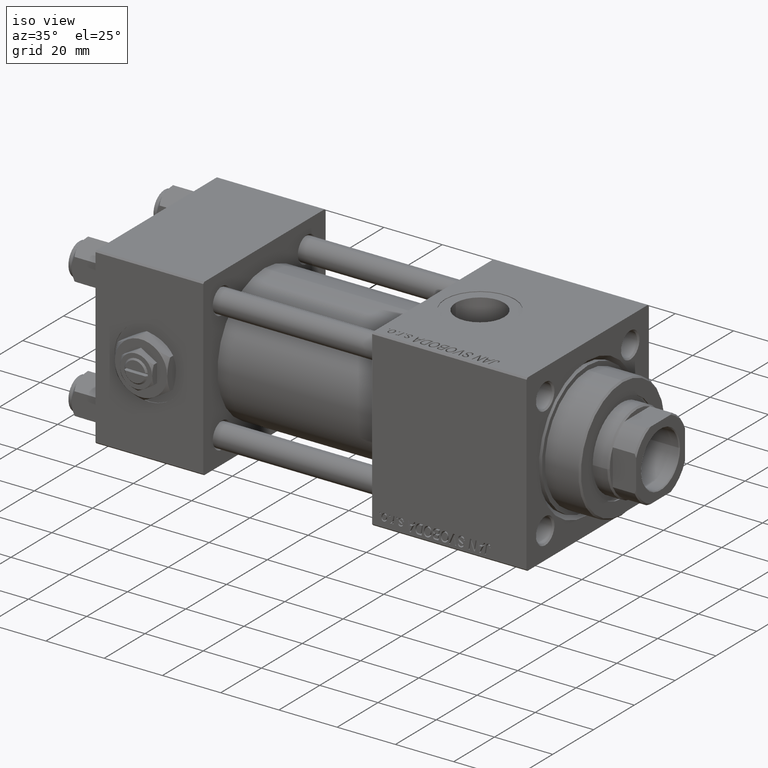
[diagram: clean part render]
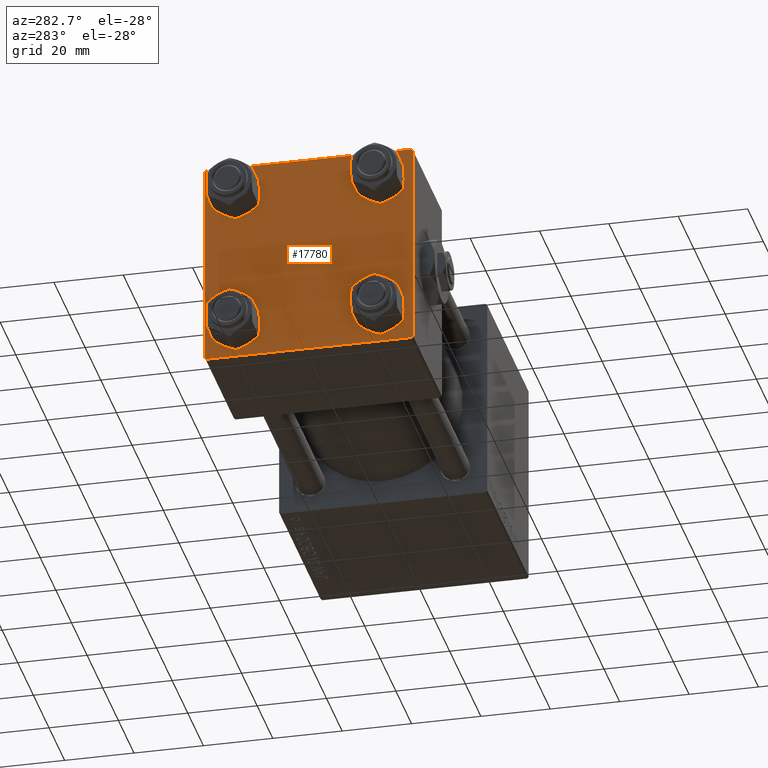
[diagram: tour spotlight — one face highlighted and labeled with its STEP entity id]
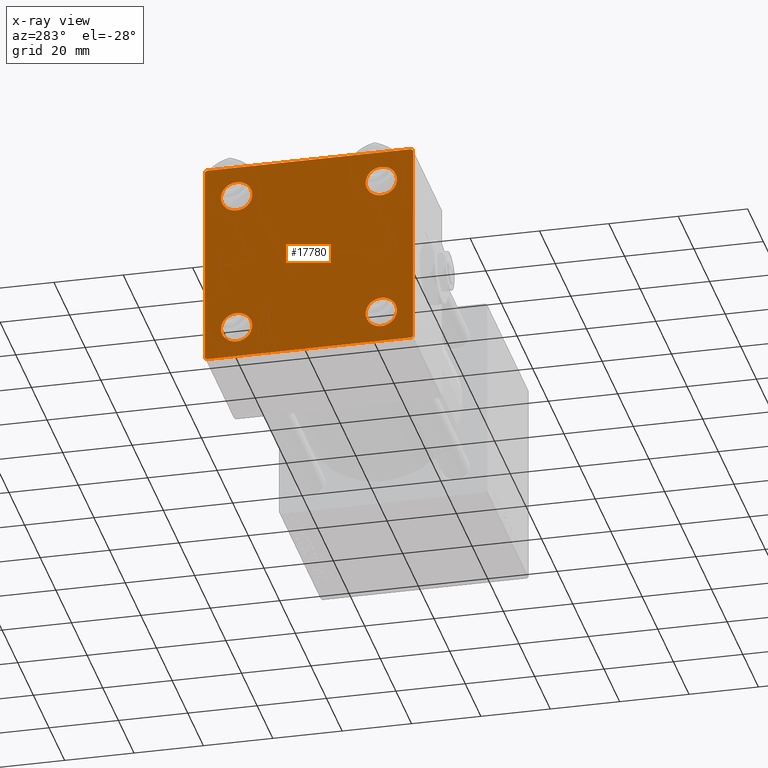
[diagram: x-ray of the same camera — body ghosted, this tour face saturated]
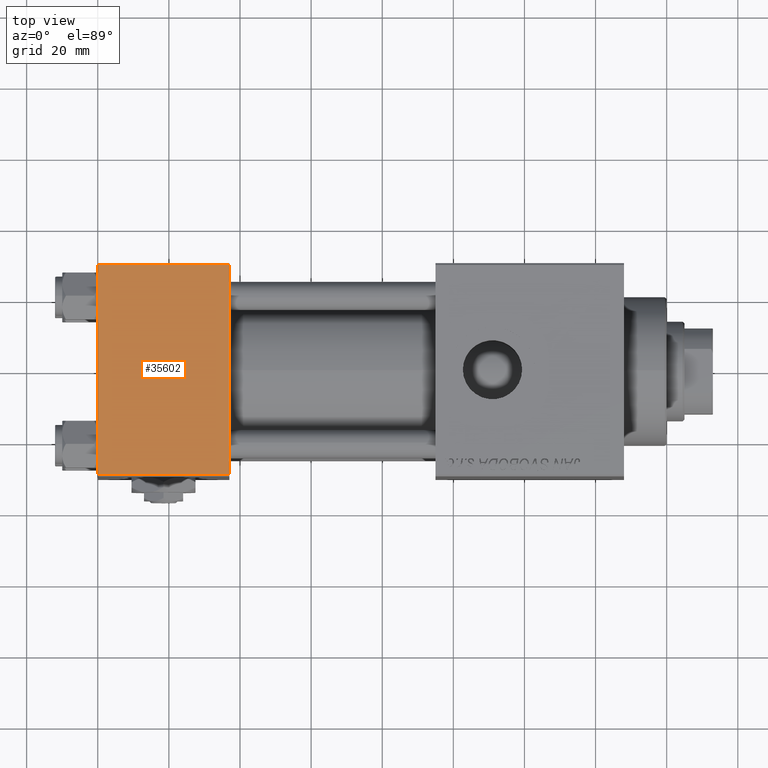
[diagram: tour spotlight — one face highlighted and labeled with its STEP entity id]
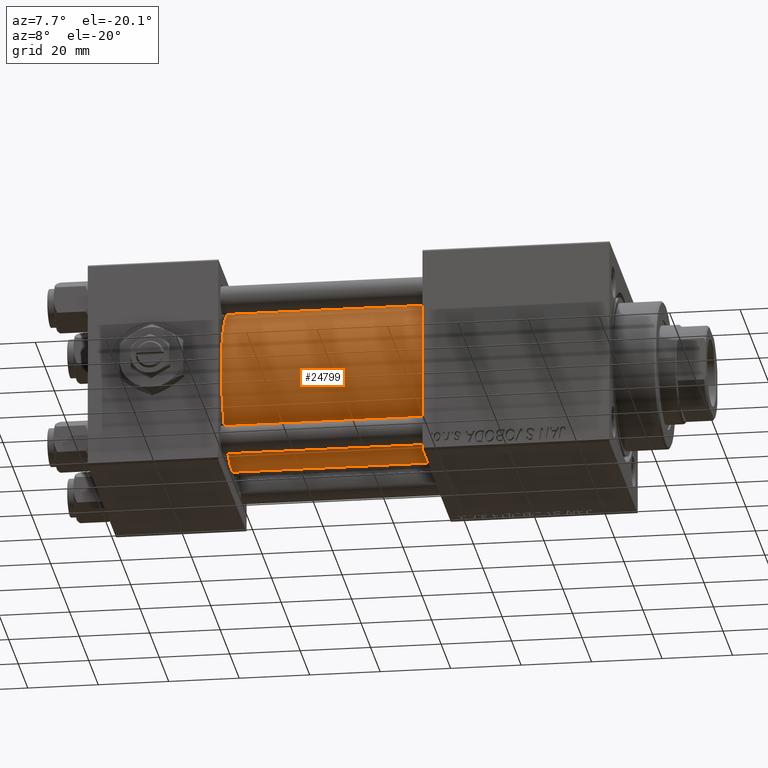
[diagram: tour spotlight — one face highlighted and labeled with its STEP entity id]
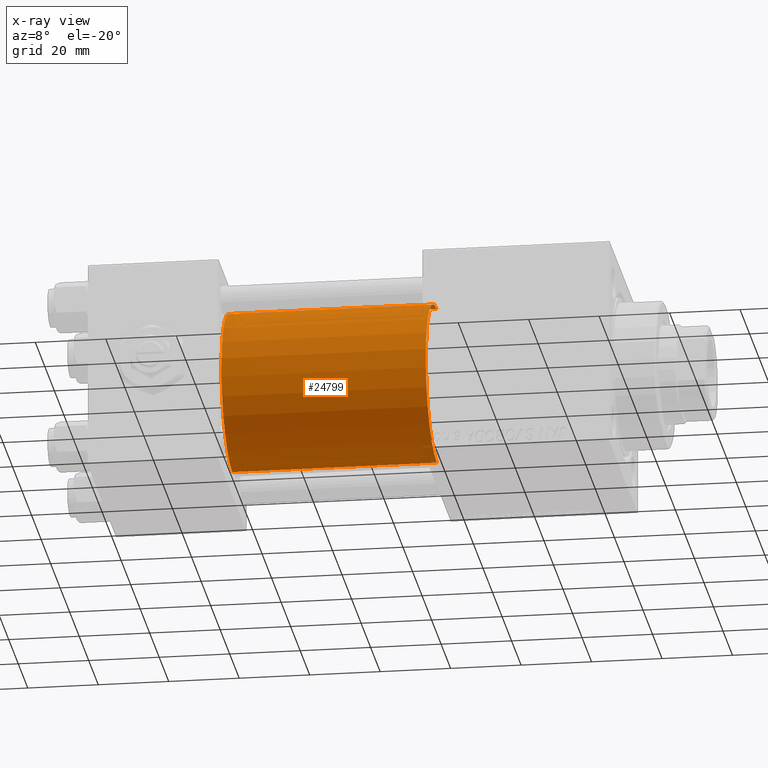
[diagram: x-ray of the same camera — body ghosted, this tour face saturated]
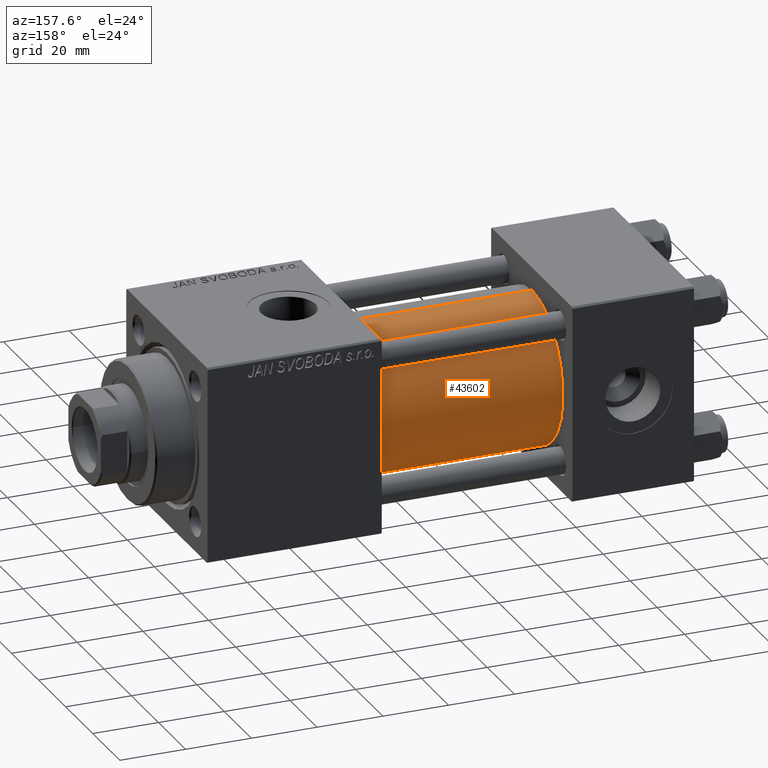
[diagram: tour spotlight — one face highlighted and labeled with its STEP entity id]
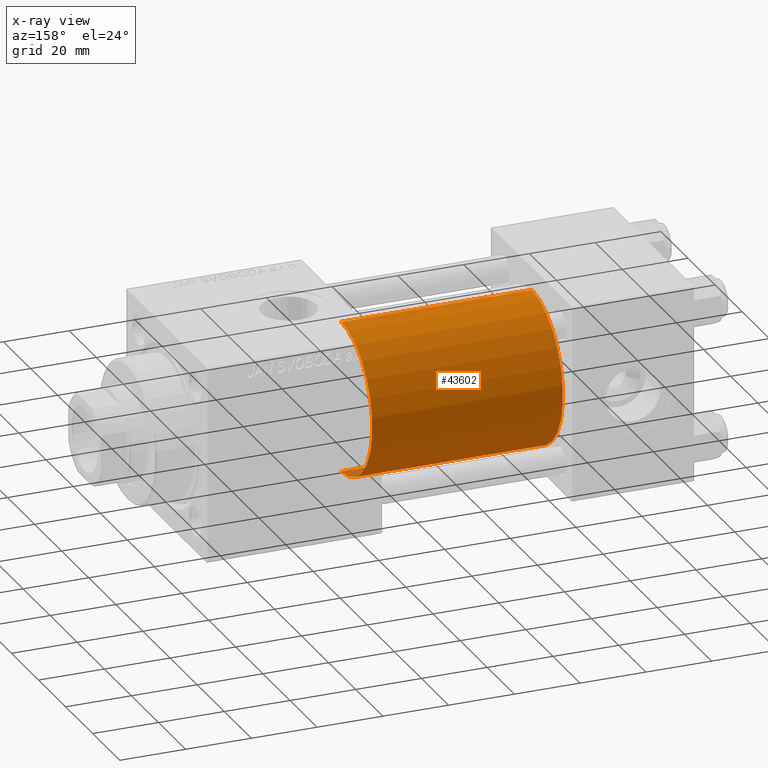
[diagram: x-ray of the same camera — body ghosted, this tour face saturated]
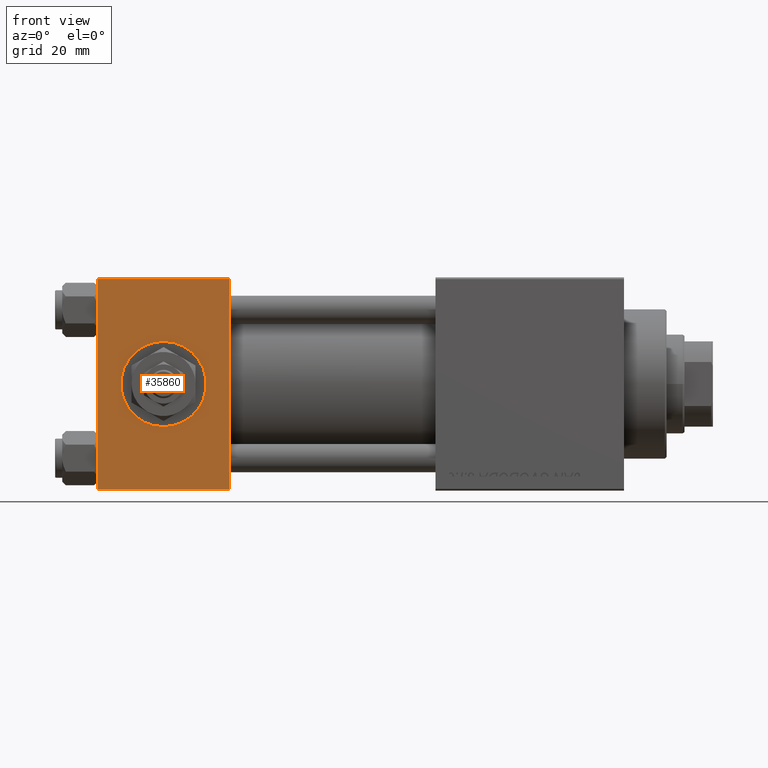
[diagram: tour spotlight — one face highlighted and labeled with its STEP entity id]
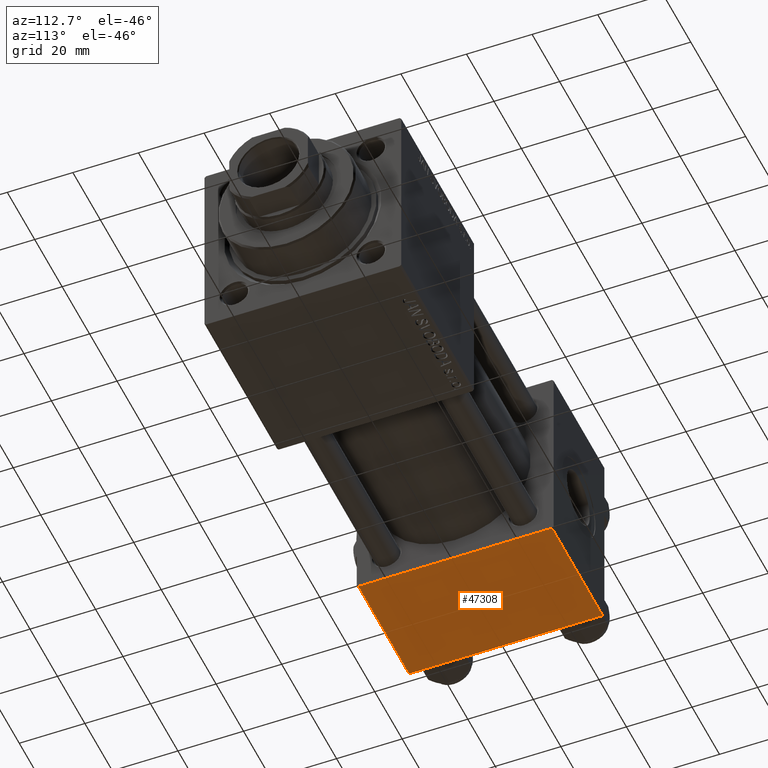
[diagram: tour spotlight — one face highlighted and labeled with its STEP entity id]
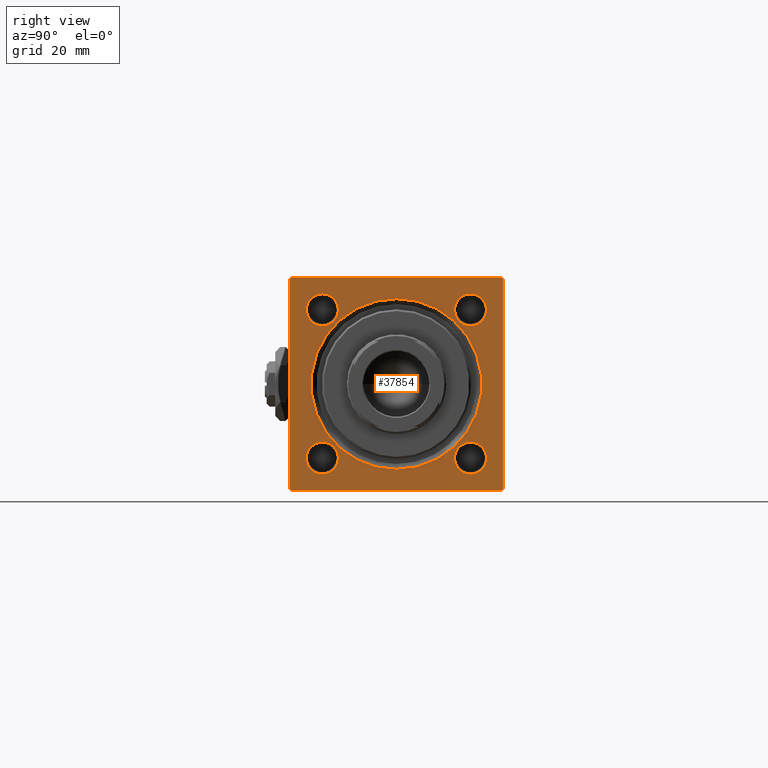
[diagram: tour spotlight — one face highlighted and labeled with its STEP entity id]
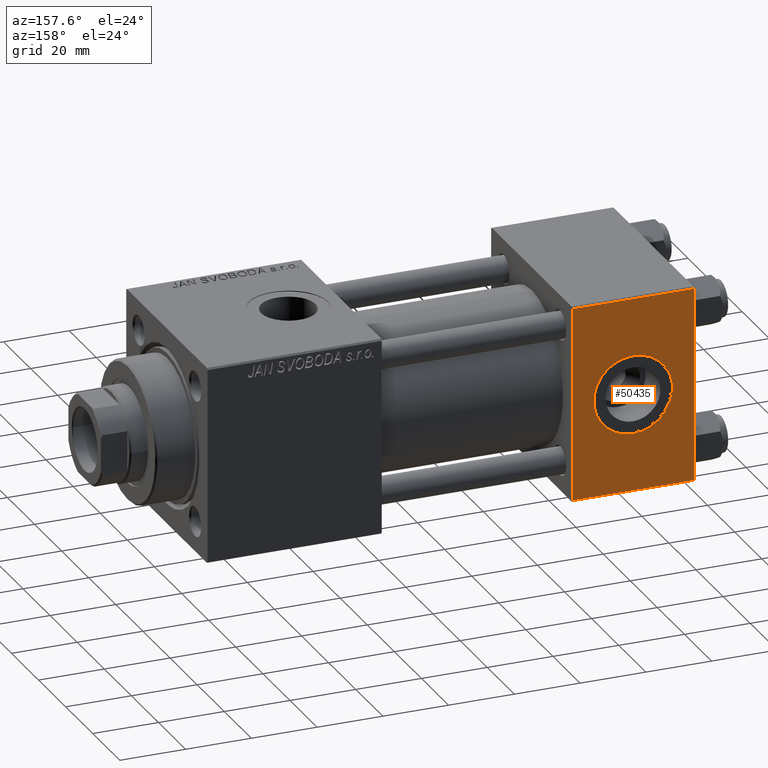
[diagram: tour spotlight — one face highlighted and labeled with its STEP entity id]
A machine part: a face-by-face anatomy tour. The part has 1202 B-rep faces; the first image is the clean iso view, then the 8 largest visible faces are spotlighted one at a time (largest first), each with its STEP entity span.

Face 1 — auxiliary view, entity #17780. An x-ray twin of the same camera follows (body ghosted, this face saturated) — the face is partly hidden behind the body. In plain terms, the highlighted planar face has unit normal (-1, 0, 0).
Definition (entity closure, byte-faithful):
#128 = EDGE_CURVE ( 'NONE', #26255, #48479, #31091, .T. ) ;
#335 = CIRCLE ( 'NONE', #29655, 4.500000000000017764 ) ;
#892 = ORIENTED_EDGE ( 'NONE', *, *, #128, .T. ) ;
#980 = DIRECTION ( 'NONE',  ( 0.000000000000000000, 0.7071067811865474617, -0.7071067811865474617 ) ) ;
#995 = DIRECTION ( 'NONE',  ( 0.000000000000000000, -1.000000000000000000, -1.156482317317871725E-16 ) ) ;
#1644 = CARTESIAN_POINT ( 'NONE',  ( 0.000000000000000000, -20.84999999999999076, -20.85000000000000497 ) ) ;
#1770 = CARTESIAN_POINT ( 'NONE',  ( 0.000000000000000000, 20.84999999999999787, -20.85000000000000142 ) ) ;
#2265 = VERTEX_POINT ( 'NONE', #3628 ) ;
#2307 = DIRECTION ( 'NONE',  ( 0.000000000000000000, 0.000000000000000000, 1.000000000000000000 ) ) ;
#2411 = LINE ( 'NONE', #30774, #15109 ) ;
#2433 = CARTESIAN_POINT ( 'NONE',  ( 0.000000000000000000, -20.84999999999999076, 20.85000000000000497 ) ) ;
#2890 = EDGE_CURVE ( 'NONE', #34971, #31195, #30038, .T. ) ;
#3399 = EDGE_CURVE ( 'NONE', #34834, #26255, #36952, .T. ) ;
#3628 = CARTESIAN_POINT ( 'NONE',  ( 0.000000000000000000, -29.49999999999998579, 29.99999999999999289 ) ) ;
#4651 = VERTEX_POINT ( 'NONE', #40443 ) ;
#4659 = CARTESIAN_POINT ( 'NONE',  ( 0.000000000000000000, 29.74999999999999645, 29.74999999999999645 ) ) ;
#4885 = CIRCLE ( 'NONE', #9074, 4.500000000000017764 ) ;
#4932 = CARTESIAN_POINT ( 'NONE',  ( 0.000000000000000000, 29.99999999999999289, 30.00000000000000000 ) ) ;
#5148 = VERTEX_POINT ( 'NONE', #41874 ) ;
#5598 = ORIENTED_EDGE ( 'NONE', *, *, #43371, .T. ) ;
#5971 = DIRECTION ( 'NONE',  ( 1.000000000000000000, -0.000000000000000000, 0.000000000000000000 ) ) ;
#6177 = DIRECTION ( 'NONE',  ( 0.000000000000000000, -0.7071067811865474617, 0.7071067811865474617 ) ) ;
#6978 = CARTESIAN_POINT ( 'NONE',  ( 0.000000000000000000, 0.000000000000000000, 0.000000000000000000 ) ) ;
#7218 = CARTESIAN_POINT ( 'NONE',  ( 0.000000000000000000, 20.84999999999999787, 25.35000000000001918 ) ) ;
#7301 = AXIS2_PLACEMENT_3D ( 'NONE', #46638, #26655, #43200 ) ;
#8522 = VECTOR ( 'NONE', #11150, 1000.000000000000000 ) ;
#9074 = AXIS2_PLACEMENT_3D ( 'NONE', #45641, #5971, #2307 ) ;
#9331 = EDGE_CURVE ( 'NONE', #27478, #24975, #335, .T. ) ;
#10131 = ORIENTED_EDGE ( 'NONE', *, *, #12426, .T. ) ;
#11150 = DIRECTION ( 'NONE',  ( 0.000000000000000000, 0.000000000000000000, -1.000000000000000000 ) ) ;
#11264 = VECTOR ( 'NONE', #41332, 1000.000000000000114 ) ;
#11356 = AXIS2_PLACEMENT_3D ( 'NONE', #38631, #47303, #42823 ) ;
#11921 = VERTEX_POINT ( 'NONE', #42698 ) ;
#12426 = EDGE_CURVE ( 'NONE', #11921, #39474, #28087, .T. ) ;
#13214 = DIRECTION ( 'NONE',  ( 1.000000000000000000, -0.000000000000000000, 0.000000000000000000 ) ) ;
#14019 = CIRCLE ( 'NONE', #7301, 4.500000000000017764 ) ;
#14600 = EDGE_CURVE ( 'NONE', #48479, #5148, #46476, .T. ) ;
#14860 = AXIS2_PLACEMENT_3D ( 'NONE', #6978, #29826, #22988 ) ;
#15109 = VECTOR ( 'NONE', #22620, 1000.000000000000000 ) ;
#15171 = CARTESIAN_POINT ( 'NONE',  ( 0.000000000000000000, 20.84999999999999787, 20.85000000000000142 ) ) ;
#15245 = EDGE_CURVE ( 'NONE', #39474, #11921, #39265, .T. ) ;
#15687 = DIRECTION ( 'NONE',  ( 1.000000000000000000, -0.000000000000000000, 0.000000000000000000 ) ) ;
#16065 = VERTEX_POINT ( 'NONE', #17625 ) ;
#16121 = CARTESIAN_POINT ( 'NONE',  ( 0.000000000000000000, 20.84999999999999787, -25.35000000000001918 ) ) ;
#16988 = CIRCLE ( 'NONE', #30404, 4.500000000000017764 ) ;
#17456 = DIRECTION ( 'NONE',  ( 0.000000000000000000, 0.000000000000000000, -1.000000000000000000 ) ) ;
#17625 = CARTESIAN_POINT ( 'NONE',  ( 0.000000000000000000, -29.50000000000000000, -30.00000000000000711 ) ) ;
#17780 = ADVANCED_FACE ( 'NONE', ( #18807, #30347, #38494, #21942, #37972 ), #18294, .T. ) ;
#17985 = CARTESIAN_POINT ( 'NONE',  ( 0.000000000000000000, 29.99999999999999289, 30.00000000000000000 ) ) ;
#18005 = ORIENTED_EDGE ( 'NONE', *, *, #18926, .T. ) ;
#18235 = LINE ( 'NONE', #30285, #11264 ) ;
#18294 = PLANE ( 'NONE',  #14860 ) ;
#18807 = FACE_BOUND ( 'NONE', #41909, .T. ) ;
#18926 = EDGE_CURVE ( 'NONE', #4651, #21936, #33260, .T. ) ;
#19064 = ORIENTED_EDGE ( 'NONE', *, *, #15245, .T. ) ;
#19326 = VECTOR ( 'NONE', #6177, 1000.000000000000114 ) ;
#20601 = ORIENTED_EDGE ( 'NONE', *, *, #51274, .F. ) ;
#20990 = CARTESIAN_POINT ( 'NONE',  ( 0.000000000000000000, -20.84999999999999076, -25.35000000000002274 ) ) ;
#21135 = AXIS2_PLACEMENT_3D ( 'NONE', #15171, #27222, #51396 ) ;
#21461 = DIRECTION ( 'NONE',  ( 1.000000000000000000, -0.000000000000000000, 0.000000000000000000 ) ) ;
#21526 = AXIS2_PLACEMENT_3D ( 'NONE', #51640, #15687, #31680 ) ;
#21936 = VERTEX_POINT ( 'NONE', #7218 ) ;
#21942 = FACE_BOUND ( 'NONE', #36662, .T. ) ;
#21979 = CARTESIAN_POINT ( 'NONE',  ( 0.000000000000000000, -20.84999999999999076, 25.35000000000002274 ) ) ;
#22620 = DIRECTION ( 'NONE',  ( 0.000000000000000000, -1.000000000000000000, -1.156482317317871725E-16 ) ) ;
#22689 = EDGE_CURVE ( 'NONE', #44564, #23762, #14019, .T. ) ;
#22709 = CARTESIAN_POINT ( 'NONE',  ( 0.000000000000000000, -29.75000000000001066, -29.75000000000001066 ) ) ;
#22988 = DIRECTION ( 'NONE',  ( -0.000000000000000000, 0.000000000000000000, 1.000000000000000000 ) ) ;
#23762 = VERTEX_POINT ( 'NONE', #16121 ) ;
#24142 = EDGE_LOOP ( 'NONE', ( #48261, #49421 ) ) ;
#24566 = VECTOR ( 'NONE', #980, 1000.000000000000114 ) ;
#24586 = EDGE_LOOP ( 'NONE', ( #29307, #38588 ) ) ;
#24624 = LINE ( 'NONE', #4932, #25658 ) ;
#24975 = VERTEX_POINT ( 'NONE', #33478 ) ;
#25013 = DIRECTION ( 'NONE',  ( 0.000000000000000000, 0.000000000000000000, 1.000000000000000000 ) ) ;
#25658 = VECTOR ( 'NONE', #995, 1000.000000000000000 ) ;
#25819 = EDGE_CURVE ( 'NONE', #24975, #27478, #4885, .T. ) ;
#26227 = CARTESIAN_POINT ( 'NONE',  ( 0.000000000000000000, 29.74999999999957723, -29.75000000000040501 ) ) ;
#26255 = VERTEX_POINT ( 'NONE', #36092 ) ;
#26581 = DIRECTION ( 'NONE',  ( 1.000000000000000000, -0.000000000000000000, 0.000000000000000000 ) ) ;
#26655 = DIRECTION ( 'NONE',  ( 1.000000000000000000, -0.000000000000000000, 0.000000000000000000 ) ) ;
#27183 = ORIENTED_EDGE ( 'NONE', *, *, #14600, .T. ) ;
#27222 = DIRECTION ( 'NONE',  ( 1.000000000000000000, -0.000000000000000000, 0.000000000000000000 ) ) ;
#27478 = VERTEX_POINT ( 'NONE', #20990 ) ;
#28087 = CIRCLE ( 'NONE', #11356, 4.500000000000017764 ) ;
#28700 = CARTESIAN_POINT ( 'NONE',  ( 0.000000000000000000, 29.49999999999999289, 30.00000000000000000 ) ) ;
#29156 = AXIS2_PLACEMENT_3D ( 'NONE', #2433, #26581, #42610 ) ;
#29307 = ORIENTED_EDGE ( 'NONE', *, *, #25819, .T. ) ;
#29648 = DIRECTION ( 'NONE',  ( -0.000000000000000000, -0.7071067811865574537, -0.7071067811865376918 ) ) ;
#29655 = AXIS2_PLACEMENT_3D ( 'NONE', #1644, #13214, #25013 ) ;
#29826 = DIRECTION ( 'NONE',  ( -1.000000000000000000, 0.000000000000000000, -0.000000000000000000 ) ) ;
#29879 = EDGE_CURVE ( 'NONE', #5148, #16065, #2411, .T. ) ;
#30038 = LINE ( 'NONE', #37402, #43852 ) ;
#30285 = CARTESIAN_POINT ( 'NONE',  ( -0.000000000000000000, -29.74999999999999645, 29.74999999999999645 ) ) ;
#30347 = FACE_BOUND ( 'NONE', #24586, .T. ) ;
#30404 = AXIS2_PLACEMENT_3D ( 'NONE', #1770, #21461, #33542 ) ;
#30774 = CARTESIAN_POINT ( 'NONE',  ( 0.000000000000000000, 29.99999999999999289, -30.00000000000000000 ) ) ;
#30878 = EDGE_LOOP ( 'NONE', ( #892, #27183, #36571, #31422, #37183, #5598, #20601, #39334 ) ) ;
#31091 = LINE ( 'NONE', #17985, #8522 ) ;
#31195 = VERTEX_POINT ( 'NONE', #37755 ) ;
#31422 = ORIENTED_EDGE ( 'NONE', *, *, #31526, .T. ) ;
#31526 = EDGE_CURVE ( 'NONE', #16065, #31195, #42149, .T. ) ;
#31680 = DIRECTION ( 'NONE',  ( 0.000000000000000000, 0.000000000000000000, 1.000000000000000000 ) ) ;
#33220 = VECTOR ( 'NONE', #29648, 999.9999999999998863 ) ;
#33260 = CIRCLE ( 'NONE', #21526, 4.500000000000017764 ) ;
#33478 = CARTESIAN_POINT ( 'NONE',  ( 0.000000000000000000, -20.84999999999999076, -16.34999999999998721 ) ) ;
#33542 = DIRECTION ( 'NONE',  ( 0.000000000000000000, 0.000000000000000000, 1.000000000000000000 ) ) ;
#33649 = ORIENTED_EDGE ( 'NONE', *, *, #35276, .T. ) ;
#34834 = VERTEX_POINT ( 'NONE', #28700 ) ;
#34971 = VERTEX_POINT ( 'NONE', #42640 ) ;
#35276 = EDGE_CURVE ( 'NONE', #21936, #4651, #48005, .T. ) ;
#36092 = CARTESIAN_POINT ( 'NONE',  ( 0.000000000000000000, 29.99999999999999289, 29.50000000000000000 ) ) ;
#36571 = ORIENTED_EDGE ( 'NONE', *, *, #29879, .T. ) ;
#36662 = EDGE_LOOP ( 'NONE', ( #33649, #18005 ) ) ;
#36952 = LINE ( 'NONE', #4659, #24566 ) ;
#37183 = ORIENTED_EDGE ( 'NONE', *, *, #2890, .F. ) ;
#37402 = CARTESIAN_POINT ( 'NONE',  ( 0.000000000000000000, -30.00000000000000000, 29.99999999999999289 ) ) ;
#37755 = CARTESIAN_POINT ( 'NONE',  ( 0.000000000000000000, -30.00000000000000000, -29.50000000000001776 ) ) ;
#37972 = FACE_OUTER_BOUND ( 'NONE', #30878, .T. ) ;
#38494 = FACE_BOUND ( 'NONE', #24142, .T. ) ;
#38588 = ORIENTED_EDGE ( 'NONE', *, *, #9331, .T. ) ;
#38631 = CARTESIAN_POINT ( 'NONE',  ( 0.000000000000000000, -20.84999999999999076, 20.85000000000000497 ) ) ;
#38784 = CARTESIAN_POINT ( 'NONE',  ( 0.000000000000000000, 29.99999999999999289, -29.50000000000000000 ) ) ;
#39265 = CIRCLE ( 'NONE', #29156, 4.500000000000017764 ) ;
#39334 = ORIENTED_EDGE ( 'NONE', *, *, #3399, .T. ) ;
#39474 = VERTEX_POINT ( 'NONE', #21979 ) ;
#39491 = EDGE_CURVE ( 'NONE', #23762, #44564, #16988, .T. ) ;
#40443 = CARTESIAN_POINT ( 'NONE',  ( 0.000000000000000000, 20.84999999999999787, 16.34999999999998366 ) ) ;
#41332 = DIRECTION ( 'NONE',  ( -0.000000000000000000, 0.7071067811865474617, 0.7071067811865474617 ) ) ;
#41874 = CARTESIAN_POINT ( 'NONE',  ( 0.000000000000000000, 29.49999999999997868, -30.00000000000000000 ) ) ;
#41909 = EDGE_LOOP ( 'NONE', ( #19064, #10131 ) ) ;
#42149 = LINE ( 'NONE', #22709, #19326 ) ;
#42610 = DIRECTION ( 'NONE',  ( 0.000000000000000000, 0.000000000000000000, 1.000000000000000000 ) ) ;
#42640 = CARTESIAN_POINT ( 'NONE',  ( 0.000000000000000000, -30.00000000000000000, 29.49999999999999289 ) ) ;
#42698 = CARTESIAN_POINT ( 'NONE',  ( 0.000000000000000000, -20.84999999999999076, 16.34999999999998721 ) ) ;
#42823 = DIRECTION ( 'NONE',  ( 0.000000000000000000, 0.000000000000000000, 1.000000000000000000 ) ) ;
#43200 = DIRECTION ( 'NONE',  ( 0.000000000000000000, 0.000000000000000000, 1.000000000000000000 ) ) ;
#43371 = EDGE_CURVE ( 'NONE', #34971, #2265, #18235, .T. ) ;
#43852 = VECTOR ( 'NONE', #17456, 1000.000000000000000 ) ;
#44455 = CARTESIAN_POINT ( 'NONE',  ( 0.000000000000000000, 20.84999999999999787, -16.34999999999998366 ) ) ;
#44564 = VERTEX_POINT ( 'NONE', #44455 ) ;
#45641 = CARTESIAN_POINT ( 'NONE',  ( 0.000000000000000000, -20.84999999999999076, -20.85000000000000497 ) ) ;
#46476 = LINE ( 'NONE', #26227, #33220 ) ;
#46638 = CARTESIAN_POINT ( 'NONE',  ( 0.000000000000000000, 20.84999999999999787, -20.85000000000000142 ) ) ;
#47303 = DIRECTION ( 'NONE',  ( 1.000000000000000000, -0.000000000000000000, 0.000000000000000000 ) ) ;
#48005 = CIRCLE ( 'NONE', #21135, 4.500000000000017764 ) ;
#48261 = ORIENTED_EDGE ( 'NONE', *, *, #22689, .T. ) ;
#48479 = VERTEX_POINT ( 'NONE', #38784 ) ;
#49421 = ORIENTED_EDGE ( 'NONE', *, *, #39491, .T. ) ;
#51274 = EDGE_CURVE ( 'NONE', #34834, #2265, #24624, .T. ) ;
#51396 = DIRECTION ( 'NONE',  ( 0.000000000000000000, 0.000000000000000000, 1.000000000000000000 ) ) ;
#51640 = CARTESIAN_POINT ( 'NONE',  ( 0.000000000000000000, 20.84999999999999787, 20.85000000000000142 ) ) ;

Face 2 — top view, entity #35602. In plain terms, the highlighted planar face has unit normal (0, 0, -1).
Definition (entity closure, byte-faithful):
#935 = DIRECTION ( 'NONE',  ( 0.000000000000000000, 1.156482317317871725E-16, -1.000000000000000000 ) ) ;
#995 = DIRECTION ( 'NONE',  ( 0.000000000000000000, -1.000000000000000000, -1.156482317317871725E-16 ) ) ;
#2265 = VERTEX_POINT ( 'NONE', #3628 ) ;
#3628 = CARTESIAN_POINT ( 'NONE',  ( 0.000000000000000000, -29.49999999999998579, 29.99999999999999289 ) ) ;
#4932 = CARTESIAN_POINT ( 'NONE',  ( 0.000000000000000000, 29.99999999999999289, 30.00000000000000000 ) ) ;
#5266 = VERTEX_POINT ( 'NONE', #47129 ) ;
#6392 = VECTOR ( 'NONE', #48530, 1000.000000000000000 ) ;
#6491 = VERTEX_POINT ( 'NONE', #17355 ) ;
#8559 = EDGE_CURVE ( 'NONE', #2265, #6491, #35225, .T. ) ;
#8669 = ORIENTED_EDGE ( 'NONE', *, *, #31486, .F. ) ;
#9314 = FACE_OUTER_BOUND ( 'NONE', #40929, .T. ) ;
#10121 = ORIENTED_EDGE ( 'NONE', *, *, #13995, .T. ) ;
#13286 = DIRECTION ( 'NONE',  ( 0.000000000000000000, 1.000000000000000000, 1.156482317317871725E-16 ) ) ;
#13995 = EDGE_CURVE ( 'NONE', #5266, #34834, #40891, .T. ) ;
#17013 = DIRECTION ( 'NONE',  ( 1.000000000000000000, 0.000000000000000000, 0.000000000000000000 ) ) ;
#17355 = CARTESIAN_POINT ( 'NONE',  ( 37.00000000000000000, -29.49999999999998579, 29.99999999999999289 ) ) ;
#20894 = CARTESIAN_POINT ( 'NONE',  ( 37.00000000000000000, 29.99999999999999289, 30.00000000000000000 ) ) ;
#24624 = LINE ( 'NONE', #4932, #25658 ) ;
#25658 = VECTOR ( 'NONE', #995, 1000.000000000000000 ) ;
#26158 = AXIS2_PLACEMENT_3D ( 'NONE', #32703, #935, #13286 ) ;
#28700 = CARTESIAN_POINT ( 'NONE',  ( 0.000000000000000000, 29.49999999999999289, 30.00000000000000000 ) ) ;
#30218 = VECTOR ( 'NONE', #48501, 1000.000000000000000 ) ;
#31486 = EDGE_CURVE ( 'NONE', #5266, #6491, #32465, .T. ) ;
#32465 = LINE ( 'NONE', #20894, #30218 ) ;
#32703 = CARTESIAN_POINT ( 'NONE',  ( 37.00000000000000000, 29.99999999999999289, 30.00000000000000000 ) ) ;
#34101 = ORIENTED_EDGE ( 'NONE', *, *, #8559, .T. ) ;
#34834 = VERTEX_POINT ( 'NONE', #28700 ) ;
#35225 = LINE ( 'NONE', #44340, #45570 ) ;
#35602 = ADVANCED_FACE ( 'NONE', ( #9314 ), #48741, .F. ) ;
#37216 = CARTESIAN_POINT ( 'NONE',  ( 0.000000000000000000, 29.49999999999999289, 30.00000000000000000 ) ) ;
#40891 = LINE ( 'NONE', #37216, #6392 ) ;
#40929 = EDGE_LOOP ( 'NONE', ( #51626, #34101, #8669, #10121 ) ) ;
#44340 = CARTESIAN_POINT ( 'NONE',  ( 37.00000000000000000, -29.50000000000000000, 29.99999999999999289 ) ) ;
#45570 = VECTOR ( 'NONE', #17013, 1000.000000000000000 ) ;
#47129 = CARTESIAN_POINT ( 'NONE',  ( 37.00000000000000000, 29.49999999999999289, 30.00000000000000000 ) ) ;
#48501 = DIRECTION ( 'NONE',  ( 0.000000000000000000, -1.000000000000000000, -1.156482317317871725E-16 ) ) ;
#48530 = DIRECTION ( 'NONE',  ( -1.000000000000000000, 0.000000000000000000, 0.000000000000000000 ) ) ;
#48741 = PLANE ( 'NONE',  #26158 ) ;
#51274 = EDGE_CURVE ( 'NONE', #34834, #2265, #24624, .T. ) ;
#51626 = ORIENTED_EDGE ( 'NONE', *, *, #51274, .T. ) ;

Face 3 — auxiliary view, entity #24799. An x-ray twin of the same camera follows (body ghosted, this face saturated) — the face is partly hidden behind the body. In plain terms, the highlighted cylindrical surface (partial cylindrical patch) has radius 23 mm, axis along (-1, -0, -0).
Definition (entity closure, byte-faithful):
#114 = ORIENTED_EDGE ( 'NONE', *, *, #15314, .F. ) ;
#895 = ORIENTED_EDGE ( 'NONE', *, *, #34911, .T. ) ;
#1647 = DIRECTION ( 'NONE',  ( 0.000000000000000000, 0.000000000000000000, 1.000000000000000000 ) ) ;
#4873 = DIRECTION ( 'NONE',  ( -1.000000000000000000, -0.000000000000000000, -0.000000000000000000 ) ) ;
#6499 = CARTESIAN_POINT ( 'NONE',  ( 95.00000000000000000, -2.602085213965210642E-15, 0.000000000000000000 ) ) ;
#7012 = DIRECTION ( 'NONE',  ( -1.000000000000000000, -0.000000000000000000, -0.000000000000000000 ) ) ;
#7154 = CARTESIAN_POINT ( 'NONE',  ( 95.00000000000000000, -2.602085213965210642E-15, 0.000000000000000000 ) ) ;
#10735 = AXIS2_PLACEMENT_3D ( 'NONE', #7154, #38668, #34467 ) ;
#10793 = VERTEX_POINT ( 'NONE', #42233 ) ;
#11185 = ORIENTED_EDGE ( 'NONE', *, *, #12677, .T. ) ;
#11908 = CIRCLE ( 'NONE', #45435, 23.00000000000000000 ) ;
#12677 = EDGE_CURVE ( 'NONE', #37586, #10793, #38893, .T. ) ;
#14074 = VERTEX_POINT ( 'NONE', #29583 ) ;
#15314 = EDGE_CURVE ( 'NONE', #37586, #14074, #27477, .T. ) ;
#19611 = LINE ( 'NONE', #19872, #51930 ) ;
#19706 = CARTESIAN_POINT ( 'NONE',  ( 95.00000000000000000, -2.602085213965210642E-15, 23.00000000000000000 ) ) ;
#19872 = CARTESIAN_POINT ( 'NONE',  ( 95.00000000000000000, 2.146024240737012665E-16, -23.00000000000000000 ) ) ;
#21851 = DIRECTION ( 'NONE',  ( 1.000000000000000000, -0.000000000000000000, 0.000000000000000000 ) ) ;
#24748 = VECTOR ( 'NONE', #47298, 1000.000000000000000 ) ;
#24799 = ADVANCED_FACE ( 'NONE', ( #26440 ), #42473, .T. ) ;
#26044 = CARTESIAN_POINT ( 'NONE',  ( 37.00000000000000000, -2.602085213965210642E-15, 0.000000000000000000 ) ) ;
#26440 = FACE_OUTER_BOUND ( 'NONE', #32904, .T. ) ;
#27477 = CIRCLE ( 'NONE', #10735, 23.00000000000000000 ) ;
#27577 = EDGE_CURVE ( 'NONE', #14074, #44685, #19611, .T. ) ;
#27730 = DIRECTION ( 'NONE',  ( 0.000000000000000000, 0.000000000000000000, 1.000000000000000000 ) ) ;
#29583 = CARTESIAN_POINT ( 'NONE',  ( 95.00000000000000000, 2.146024240737012665E-16, -23.00000000000000000 ) ) ;
#32512 = AXIS2_PLACEMENT_3D ( 'NONE', #6499, #4873, #27730 ) ;
#32904 = EDGE_LOOP ( 'NONE', ( #48070, #114, #11185, #895 ) ) ;
#34467 = DIRECTION ( 'NONE',  ( 0.000000000000000000, 0.000000000000000000, -1.000000000000000000 ) ) ;
#34911 = EDGE_CURVE ( 'NONE', #10793, #44685, #11908, .T. ) ;
#35342 = CARTESIAN_POINT ( 'NONE',  ( 95.00000000000000000, -2.602085213965210642E-15, 23.00000000000000000 ) ) ;
#37586 = VERTEX_POINT ( 'NONE', #35342 ) ;
#38668 = DIRECTION ( 'NONE',  ( 1.000000000000000000, 0.000000000000000000, 0.000000000000000000 ) ) ;
#38893 = LINE ( 'NONE', #19706, #24748 ) ;
#42233 = CARTESIAN_POINT ( 'NONE',  ( 37.00000000000000000, -2.602085213965210642E-15, 23.00000000000000000 ) ) ;
#42473 = CYLINDRICAL_SURFACE ( 'NONE', #32512, 23.00000000000000000 ) ;
#44685 = VERTEX_POINT ( 'NONE', #46009 ) ;
#45435 = AXIS2_PLACEMENT_3D ( 'NONE', #26044, #21851, #1647 ) ;
#46009 = CARTESIAN_POINT ( 'NONE',  ( 37.00000000000000000, 2.146024240737012665E-16, -23.00000000000000000 ) ) ;
#47298 = DIRECTION ( 'NONE',  ( -1.000000000000000000, -0.000000000000000000, -0.000000000000000000 ) ) ;
#48070 = ORIENTED_EDGE ( 'NONE', *, *, #27577, .F. ) ;
#51930 = VECTOR ( 'NONE', #7012, 1000.000000000000000 ) ;

Face 4 — auxiliary view, entity #43602. An x-ray twin of the same camera follows (body ghosted, this face saturated) — the face is partly hidden behind the body. In plain terms, the highlighted cylindrical surface (partial cylindrical patch) has radius 23 mm, axis along (-1, -0, -0).
Definition (entity closure, byte-faithful):
#2388 = EDGE_LOOP ( 'NONE', ( #11048, #19464, #39402, #5740 ) ) ;
#5740 = ORIENTED_EDGE ( 'NONE', *, *, #12677, .F. ) ;
#5807 = DIRECTION ( 'NONE',  ( -1.000000000000000000, -0.000000000000000000, -0.000000000000000000 ) ) ;
#6069 = CARTESIAN_POINT ( 'NONE',  ( 95.00000000000000000, -2.602085213965210642E-15, 0.000000000000000000 ) ) ;
#7012 = DIRECTION ( 'NONE',  ( -1.000000000000000000, -0.000000000000000000, -0.000000000000000000 ) ) ;
#7799 = CIRCLE ( 'NONE', #14537, 23.00000000000000000 ) ;
#9220 = FACE_OUTER_BOUND ( 'NONE', #2388, .T. ) ;
#10793 = VERTEX_POINT ( 'NONE', #42233 ) ;
#11048 = ORIENTED_EDGE ( 'NONE', *, *, #41399, .F. ) ;
#12677 = EDGE_CURVE ( 'NONE', #37586, #10793, #38893, .T. ) ;
#13524 = DIRECTION ( 'NONE',  ( 1.000000000000000000, 0.000000000000000000, 0.000000000000000000 ) ) ;
#14074 = VERTEX_POINT ( 'NONE', #29583 ) ;
#14537 = AXIS2_PLACEMENT_3D ( 'NONE', #49493, #13524, #36640 ) ;
#17385 = CYLINDRICAL_SURFACE ( 'NONE', #34728, 23.00000000000000000 ) ;
#19331 = CARTESIAN_POINT ( 'NONE',  ( 37.00000000000000000, -2.602085213965210642E-15, 0.000000000000000000 ) ) ;
#19464 = ORIENTED_EDGE ( 'NONE', *, *, #27577, .T. ) ;
#19611 = LINE ( 'NONE', #19872, #51930 ) ;
#19706 = CARTESIAN_POINT ( 'NONE',  ( 95.00000000000000000, -2.602085213965210642E-15, 23.00000000000000000 ) ) ;
#19846 = DIRECTION ( 'NONE',  ( 1.000000000000000000, -0.000000000000000000, 0.000000000000000000 ) ) ;
#19872 = CARTESIAN_POINT ( 'NONE',  ( 95.00000000000000000, 2.146024240737012665E-16, -23.00000000000000000 ) ) ;
#24748 = VECTOR ( 'NONE', #47298, 1000.000000000000000 ) ;
#27577 = EDGE_CURVE ( 'NONE', #14074, #44685, #19611, .T. ) ;
#29583 = CARTESIAN_POINT ( 'NONE',  ( 95.00000000000000000, 2.146024240737012665E-16, -23.00000000000000000 ) ) ;
#31663 = DIRECTION ( 'NONE',  ( 0.000000000000000000, 0.000000000000000000, 1.000000000000000000 ) ) ;
#34728 = AXIS2_PLACEMENT_3D ( 'NONE', #6069, #5807, #37846 ) ;
#35342 = CARTESIAN_POINT ( 'NONE',  ( 95.00000000000000000, -2.602085213965210642E-15, 23.00000000000000000 ) ) ;
#36640 = DIRECTION ( 'NONE',  ( 0.000000000000000000, 0.000000000000000000, -1.000000000000000000 ) ) ;
#37586 = VERTEX_POINT ( 'NONE', #35342 ) ;
#37846 = DIRECTION ( 'NONE',  ( 0.000000000000000000, 0.000000000000000000, 1.000000000000000000 ) ) ;
#38893 = LINE ( 'NONE', #19706, #24748 ) ;
#39402 = ORIENTED_EDGE ( 'NONE', *, *, #40364, .T. ) ;
#40364 = EDGE_CURVE ( 'NONE', #44685, #10793, #42135, .T. ) ;
#41399 = EDGE_CURVE ( 'NONE', #14074, #37586, #7799, .T. ) ;
#42135 = CIRCLE ( 'NONE', #43004, 23.00000000000000000 ) ;
#42233 = CARTESIAN_POINT ( 'NONE',  ( 37.00000000000000000, -2.602085213965210642E-15, 23.00000000000000000 ) ) ;
#43004 = AXIS2_PLACEMENT_3D ( 'NONE', #19331, #19846, #31663 ) ;
#43602 = ADVANCED_FACE ( 'NONE', ( #9220 ), #17385, .T. ) ;
#44685 = VERTEX_POINT ( 'NONE', #46009 ) ;
#46009 = CARTESIAN_POINT ( 'NONE',  ( 37.00000000000000000, 2.146024240737012665E-16, -23.00000000000000000 ) ) ;
#47298 = DIRECTION ( 'NONE',  ( -1.000000000000000000, -0.000000000000000000, -0.000000000000000000 ) ) ;
#49493 = CARTESIAN_POINT ( 'NONE',  ( 95.00000000000000000, -2.602085213965210642E-15, 0.000000000000000000 ) ) ;
#51930 = VECTOR ( 'NONE', #7012, 1000.000000000000000 ) ;

Face 5 — front view, entity #35860. In plain terms, the highlighted planar face has unit normal (0, 1, 0).
Definition (entity closure, byte-faithful):
#741 = CARTESIAN_POINT ( 'NONE',  ( 37.00000000000000000, -30.00000000000000000, 29.49999999999999289 ) ) ;
#875 = CARTESIAN_POINT ( 'NONE',  ( 37.00000000000000000, -30.00000000000000000, 29.99999999999999289 ) ) ;
#1129 = PLANE ( 'NONE',  #6792 ) ;
#2890 = EDGE_CURVE ( 'NONE', #34971, #31195, #30038, .T. ) ;
#3745 = VERTEX_POINT ( 'NONE', #27144 ) ;
#6792 = AXIS2_PLACEMENT_3D ( 'NONE', #875, #41046, #17678 ) ;
#8131 = ORIENTED_EDGE ( 'NONE', *, *, #23947, .F. ) ;
#12240 = DIRECTION ( 'NONE',  ( 0.000000000000000000, 0.000000000000000000, -1.000000000000000000 ) ) ;
#13204 = CARTESIAN_POINT ( 'NONE',  ( 18.50000000000000000, -30.00000000000000000, 0.000000000000000000 ) ) ;
#17255 = CARTESIAN_POINT ( 'NONE',  ( 18.50000000000000000, -30.00000000000000000, 12.00000000000000178 ) ) ;
#17399 = DIRECTION ( 'NONE',  ( 0.000000000000000000, -1.000000000000000000, -8.673617379884036705E-17 ) ) ;
#17456 = DIRECTION ( 'NONE',  ( 0.000000000000000000, 0.000000000000000000, -1.000000000000000000 ) ) ;
#17678 = DIRECTION ( 'NONE',  ( 0.000000000000000000, -0.000000000000000000, 1.000000000000000000 ) ) ;
#19077 = DIRECTION ( 'NONE',  ( 0.000000000000000000, -1.000000000000000000, -8.673617379884036705E-17 ) ) ;
#20291 = LINE ( 'NONE', #28677, #48889 ) ;
#20939 = LINE ( 'NONE', #741, #40283 ) ;
#22402 = VERTEX_POINT ( 'NONE', #41771 ) ;
#23947 = EDGE_CURVE ( 'NONE', #22402, #40160, #45916, .T. ) ;
#24893 = CARTESIAN_POINT ( 'NONE',  ( 37.00000000000000000, -30.00000000000000000, -29.50000000000001776 ) ) ;
#25023 = FACE_OUTER_BOUND ( 'NONE', #48456, .T. ) ;
#27144 = CARTESIAN_POINT ( 'NONE',  ( 37.00000000000000000, -30.00000000000000000, 29.49999999999999289 ) ) ;
#27814 = ORIENTED_EDGE ( 'NONE', *, *, #30338, .T. ) ;
#28677 = CARTESIAN_POINT ( 'NONE',  ( 37.00000000000000000, -30.00000000000000000, 29.99999999999999289 ) ) ;
#28741 = CARTESIAN_POINT ( 'NONE',  ( 37.00000000000000000, -30.00000000000000000, -29.50000000000001776 ) ) ;
#28969 = FACE_BOUND ( 'NONE', #44056, .T. ) ;
#30038 = LINE ( 'NONE', #37402, #43852 ) ;
#30338 = EDGE_CURVE ( 'NONE', #3745, #34971, #20939, .T. ) ;
#31195 = VERTEX_POINT ( 'NONE', #37755 ) ;
#34971 = VERTEX_POINT ( 'NONE', #42640 ) ;
#35247 = EDGE_CURVE ( 'NONE', #31195, #51803, #46166, .T. ) ;
#35860 = ADVANCED_FACE ( 'NONE', ( #28969, #25023 ), #1129, .F. ) ;
#36567 = DIRECTION ( 'NONE',  ( 0.000000000000000000, 0.000000000000000000, -1.000000000000000000 ) ) ;
#37320 = CIRCLE ( 'NONE', #43212, 12.00000000000000178 ) ;
#37402 = CARTESIAN_POINT ( 'NONE',  ( 0.000000000000000000, -30.00000000000000000, 29.99999999999999289 ) ) ;
#37755 = CARTESIAN_POINT ( 'NONE',  ( 0.000000000000000000, -30.00000000000000000, -29.50000000000001776 ) ) ;
#38366 = AXIS2_PLACEMENT_3D ( 'NONE', #13204, #17399, #45229 ) ;
#39892 = ORIENTED_EDGE ( 'NONE', *, *, #2890, .T. ) ;
#40160 = VERTEX_POINT ( 'NONE', #17255 ) ;
#40283 = VECTOR ( 'NONE', #41161, 1000.000000000000000 ) ;
#40698 = ORIENTED_EDGE ( 'NONE', *, *, #40763, .F. ) ;
#40763 = EDGE_CURVE ( 'NONE', #3745, #51803, #20291, .T. ) ;
#40910 = DIRECTION ( 'NONE',  ( 1.000000000000000000, 0.000000000000000000, 0.000000000000000000 ) ) ;
#41046 = DIRECTION ( 'NONE',  ( -0.000000000000000000, 1.000000000000000000, 0.000000000000000000 ) ) ;
#41161 = DIRECTION ( 'NONE',  ( -1.000000000000000000, 0.000000000000000000, 0.000000000000000000 ) ) ;
#41771 = CARTESIAN_POINT ( 'NONE',  ( 18.50000000000000000, -30.00000000000000000, -12.00000000000000178 ) ) ;
#42640 = CARTESIAN_POINT ( 'NONE',  ( 0.000000000000000000, -30.00000000000000000, 29.49999999999999289 ) ) ;
#43212 = AXIS2_PLACEMENT_3D ( 'NONE', #47703, #19077, #12240 ) ;
#43340 = ORIENTED_EDGE ( 'NONE', *, *, #35247, .T. ) ;
#43852 = VECTOR ( 'NONE', #17456, 1000.000000000000000 ) ;
#44056 = EDGE_LOOP ( 'NONE', ( #8131, #50402 ) ) ;
#45229 = DIRECTION ( 'NONE',  ( 0.000000000000000000, 0.000000000000000000, -1.000000000000000000 ) ) ;
#45361 = VECTOR ( 'NONE', #40910, 1000.000000000000000 ) ;
#45916 = CIRCLE ( 'NONE', #38366, 12.00000000000000178 ) ;
#46166 = LINE ( 'NONE', #24893, #45361 ) ;
#47703 = CARTESIAN_POINT ( 'NONE',  ( 18.50000000000000000, -30.00000000000000000, 0.000000000000000000 ) ) ;
#48456 = EDGE_LOOP ( 'NONE', ( #39892, #43340, #40698, #27814 ) ) ;
#48889 = VECTOR ( 'NONE', #36567, 1000.000000000000000 ) ;
#49112 = EDGE_CURVE ( 'NONE', #40160, #22402, #37320, .T. ) ;
#50402 = ORIENTED_EDGE ( 'NONE', *, *, #49112, .F. ) ;
#51803 = VERTEX_POINT ( 'NONE', #28741 ) ;

Face 6 — auxiliary view, entity #47308. In plain terms, the highlighted planar face has unit normal (0, 0, -1).
Definition (entity closure, byte-faithful):
#2086 = AXIS2_PLACEMENT_3D ( 'NONE', #22082, #21823, #50192 ) ;
#2411 = LINE ( 'NONE', #30774, #15109 ) ;
#5148 = VERTEX_POINT ( 'NONE', #41874 ) ;
#6948 = VECTOR ( 'NONE', #29151, 1000.000000000000000 ) ;
#9012 = VERTEX_POINT ( 'NONE', #31355 ) ;
#13349 = CARTESIAN_POINT ( 'NONE',  ( 37.00000000000000000, 29.49999999999997868, -30.00000000000000000 ) ) ;
#14446 = EDGE_CURVE ( 'NONE', #39018, #9012, #35993, .T. ) ;
#15109 = VECTOR ( 'NONE', #22620, 1000.000000000000000 ) ;
#16030 = VECTOR ( 'NONE', #45904, 1000.000000000000000 ) ;
#16065 = VERTEX_POINT ( 'NONE', #17625 ) ;
#17285 = LINE ( 'NONE', #13349, #16030 ) ;
#17608 = ORIENTED_EDGE ( 'NONE', *, *, #39889, .T. ) ;
#17625 = CARTESIAN_POINT ( 'NONE',  ( 0.000000000000000000, -29.50000000000000000, -30.00000000000000711 ) ) ;
#21823 = DIRECTION ( 'NONE',  ( 0.000000000000000000, 1.156482317317871725E-16, -1.000000000000000000 ) ) ;
#22082 = CARTESIAN_POINT ( 'NONE',  ( 37.00000000000000000, 29.99999999999999289, -30.00000000000000000 ) ) ;
#22620 = DIRECTION ( 'NONE',  ( 0.000000000000000000, -1.000000000000000000, -1.156482317317871725E-16 ) ) ;
#23611 = ORIENTED_EDGE ( 'NONE', *, *, #35201, .T. ) ;
#24166 = CARTESIAN_POINT ( 'NONE',  ( 37.00000000000000000, 29.99999999999999289, -30.00000000000000000 ) ) ;
#25762 = FACE_OUTER_BOUND ( 'NONE', #48506, .T. ) ;
#29151 = DIRECTION ( 'NONE',  ( -1.000000000000000000, 0.000000000000000000, 0.000000000000000000 ) ) ;
#29879 = EDGE_CURVE ( 'NONE', #5148, #16065, #2411, .T. ) ;
#30774 = CARTESIAN_POINT ( 'NONE',  ( 0.000000000000000000, 29.99999999999999289, -30.00000000000000000 ) ) ;
#31355 = CARTESIAN_POINT ( 'NONE',  ( 37.00000000000000000, -29.50000000000000000, -30.00000000000000711 ) ) ;
#31819 = ORIENTED_EDGE ( 'NONE', *, *, #29879, .F. ) ;
#31874 = LINE ( 'NONE', #40970, #6948 ) ;
#32737 = ORIENTED_EDGE ( 'NONE', *, *, #14446, .T. ) ;
#35201 = EDGE_CURVE ( 'NONE', #5148, #39018, #17285, .T. ) ;
#35993 = LINE ( 'NONE', #24166, #43279 ) ;
#39018 = VERTEX_POINT ( 'NONE', #47585 ) ;
#39889 = EDGE_CURVE ( 'NONE', #9012, #16065, #31874, .T. ) ;
#40970 = CARTESIAN_POINT ( 'NONE',  ( 0.000000000000000000, -29.50000000000001066, -30.00000000000000711 ) ) ;
#41874 = CARTESIAN_POINT ( 'NONE',  ( 0.000000000000000000, 29.49999999999997868, -30.00000000000000000 ) ) ;
#43279 = VECTOR ( 'NONE', #47315, 1000.000000000000000 ) ;
#45904 = DIRECTION ( 'NONE',  ( 1.000000000000000000, 0.000000000000000000, 0.000000000000000000 ) ) ;
#46261 = PLANE ( 'NONE',  #2086 ) ;
#47308 = ADVANCED_FACE ( 'NONE', ( #25762 ), #46261, .T. ) ;
#47315 = DIRECTION ( 'NONE',  ( 0.000000000000000000, -1.000000000000000000, -1.156482317317871725E-16 ) ) ;
#47585 = CARTESIAN_POINT ( 'NONE',  ( 37.00000000000000000, 29.49999999999997868, -30.00000000000000000 ) ) ;
#48506 = EDGE_LOOP ( 'NONE', ( #31819, #23611, #32737, #17608 ) ) ;
#50192 = DIRECTION ( 'NONE',  ( 0.000000000000000000, 1.000000000000000000, 1.156482317317871725E-16 ) ) ;

Face 7 — right view, entity #37854. In plain terms, the highlighted planar face has unit normal (-1, 0, 0).
Definition (entity closure, byte-faithful):
#245 = CARTESIAN_POINT ( 'NONE',  ( 148.0000000000000000, 0.000000000000000000, -24.00000000000003908 ) ) ;
#350 = FACE_BOUND ( 'NONE', #15648, .T. ) ;
#650 = EDGE_CURVE ( 'NONE', #34821, #50958, #40707, .T. ) ;
#1158 = DIRECTION ( 'NONE',  ( -1.000000000000000000, 0.000000000000000000, -0.000000000000000000 ) ) ;
#1476 = EDGE_CURVE ( 'NONE', #30143, #32722, #22312, .T. ) ;
#2369 = DIRECTION ( 'NONE',  ( 0.000000000000000000, 0.000000000000000000, -1.000000000000000000 ) ) ;
#2632 = EDGE_CURVE ( 'NONE', #19721, #28264, #31251, .T. ) ;
#2801 = VECTOR ( 'NONE', #25586, 1000.000000000000000 ) ;
#2957 = DIRECTION ( 'NONE',  ( 0.000000000000000000, 0.000000000000000000, 1.000000000000000000 ) ) ;
#3311 = CARTESIAN_POINT ( 'NONE',  ( 148.0000000000000000, 0.000000000000000000, 0.000000000000000000 ) ) ;
#4011 = CIRCLE ( 'NONE', #23318, 4.500000000000017764 ) ;
#4079 = DIRECTION ( 'NONE',  ( 0.000000000000000000, 0.000000000000000000, 1.000000000000000000 ) ) ;
#4201 = VERTEX_POINT ( 'NONE', #7901 ) ;
#4256 = VERTEX_POINT ( 'NONE', #49368 ) ;
#4272 = CARTESIAN_POINT ( 'NONE',  ( 148.0000000000000000, -29.50000000000000000, -30.00000000000000000 ) ) ;
#4503 = CARTESIAN_POINT ( 'NONE',  ( 148.0000000000000000, -29.50000000000000000, -30.00000000000000000 ) ) ;
#4689 = VERTEX_POINT ( 'NONE', #19981 ) ;
#4752 = LINE ( 'NONE', #29413, #35829 ) ;
#5072 = EDGE_CURVE ( 'NONE', #4689, #4256, #21122, .T. ) ;
#5594 = CIRCLE ( 'NONE', #19895, 24.00000000000003908 ) ;
#5727 = LINE ( 'NONE', #45921, #6836 ) ;
#6182 = LINE ( 'NONE', #51088, #40836 ) ;
#6536 = VERTEX_POINT ( 'NONE', #32828 ) ;
#6836 = VECTOR ( 'NONE', #21482, 1000.000000000000114 ) ;
#6839 = ORIENTED_EDGE ( 'NONE', *, *, #51606, .T. ) ;
#6980 = VERTEX_POINT ( 'NONE', #15955 ) ;
#7352 = DIRECTION ( 'NONE',  ( 0.000000000000000000, 0.000000000000000000, 1.000000000000000000 ) ) ;
#7901 = CARTESIAN_POINT ( 'NONE',  ( 148.0000000000000000, 20.84999999999999787, 25.35000000000001918 ) ) ;
#8451 = ORIENTED_EDGE ( 'NONE', *, *, #15296, .T. ) ;
#8595 = AXIS2_PLACEMENT_3D ( 'NONE', #3311, #39027, #39289 ) ;
#8707 = AXIS2_PLACEMENT_3D ( 'NONE', #14499, #18180, #34184 ) ;
#8713 = DIRECTION ( 'NONE',  ( -0.000000000000000000, 0.000000000000000000, 1.000000000000000000 ) ) ;
#9026 = CIRCLE ( 'NONE', #9895, 4.500000000000017764 ) ;
#9173 = CARTESIAN_POINT ( 'NONE',  ( 148.0000000000000000, 20.84999999999999787, -16.34999999999998366 ) ) ;
#9895 = AXIS2_PLACEMENT_3D ( 'NONE', #42861, #38934, #2957 ) ;
#10178 = VERTEX_POINT ( 'NONE', #10919 ) ;
#10838 = CARTESIAN_POINT ( 'NONE',  ( 148.0000000000000000, 2.939152317953652628E-15, 24.00000000000003908 ) ) ;
#10919 = CARTESIAN_POINT ( 'NONE',  ( 148.0000000000000000, 20.84999999999999787, 16.34999999999998366 ) ) ;
#11301 = CARTESIAN_POINT ( 'NONE',  ( 148.0000000000000000, 20.84999999999999787, -20.85000000000000142 ) ) ;
#11324 = VECTOR ( 'NONE', #42507, 1000.000000000000000 ) ;
#11979 = ORIENTED_EDGE ( 'NONE', *, *, #22323, .T. ) ;
#12480 = DIRECTION ( 'NONE',  ( 0.000000000000000000, 0.000000000000000000, 1.000000000000000000 ) ) ;
#13306 = VERTEX_POINT ( 'NONE', #48148 ) ;
#13428 = ORIENTED_EDGE ( 'NONE', *, *, #15731, .T. ) ;
#14490 = DIRECTION ( 'NONE',  ( 0.000000000000000000, 0.000000000000000000, 1.000000000000000000 ) ) ;
#14499 = CARTESIAN_POINT ( 'NONE',  ( 148.0000000000000000, 20.84999999999999787, 20.85000000000000142 ) ) ;
#14579 = VERTEX_POINT ( 'NONE', #33072 ) ;
#15296 = EDGE_CURVE ( 'NONE', #14579, #42088, #9026, .T. ) ;
#15648 = EDGE_LOOP ( 'NONE', ( #6839, #27984 ) ) ;
#15731 = EDGE_CURVE ( 'NONE', #42088, #14579, #4011, .T. ) ;
#15955 = CARTESIAN_POINT ( 'NONE',  ( 148.0000000000000000, -20.84999999999999432, 25.35000000000001918 ) ) ;
#16049 = ORIENTED_EDGE ( 'NONE', *, *, #47363, .T. ) ;
#16921 = EDGE_LOOP ( 'NONE', ( #8451, #13428 ) ) ;
#17194 = AXIS2_PLACEMENT_3D ( 'NONE', #42633, #30027, #45532 ) ;
#17314 = ORIENTED_EDGE ( 'NONE', *, *, #22015, .T. ) ;
#18180 = DIRECTION ( 'NONE',  ( -1.000000000000000000, 0.000000000000000000, -0.000000000000000000 ) ) ;
#18282 = DIRECTION ( 'NONE',  ( 0.000000000000000000, -0.7071067811865474617, 0.7071067811865474617 ) ) ;
#18569 = VERTEX_POINT ( 'NONE', #27074 ) ;
#19069 = AXIS2_PLACEMENT_3D ( 'NONE', #51536, #43398, #23183 ) ;
#19689 = DIRECTION ( 'NONE',  ( -1.000000000000000000, 0.000000000000000000, -0.000000000000000000 ) ) ;
#19708 = CIRCLE ( 'NONE', #17194, 4.500000000000017764 ) ;
#19721 = VERTEX_POINT ( 'NONE', #245 ) ;
#19895 = AXIS2_PLACEMENT_3D ( 'NONE', #36611, #36356, #12480 ) ;
#19981 = CARTESIAN_POINT ( 'NONE',  ( 148.0000000000000000, 29.50000000000000000, 30.00000000000000000 ) ) ;
#20002 = CARTESIAN_POINT ( 'NONE',  ( 148.0000000000000000, 29.50000000000000000, -29.99999999999999289 ) ) ;
#20568 = CARTESIAN_POINT ( 'NONE',  ( 148.0000000000000000, 30.00000000000000000, 29.50000000000000000 ) ) ;
#20796 = CARTESIAN_POINT ( 'NONE',  ( 148.0000000000000000, 0.000000000000000000, 0.000000000000000000 ) ) ;
#21107 = VECTOR ( 'NONE', #2369, 1000.000000000000000 ) ;
#21122 = LINE ( 'NONE', #21388, #2801 ) ;
#21388 = CARTESIAN_POINT ( 'NONE',  ( 148.0000000000000000, 30.00000000000000000, 30.00000000000000000 ) ) ;
#21482 = DIRECTION ( 'NONE',  ( -0.000000000000000000, -0.7071067811865474617, -0.7071067811865474617 ) ) ;
#22015 = EDGE_CURVE ( 'NONE', #13306, #18569, #38414, .T. ) ;
#22312 = LINE ( 'NONE', #30458, #21107 ) ;
#22323 = EDGE_CURVE ( 'NONE', #28326, #50958, #4752, .T. ) ;
#22702 = EDGE_CURVE ( 'NONE', #34821, #4689, #6182, .T. ) ;
#22784 = EDGE_CURVE ( 'NONE', #28264, #19721, #5594, .T. ) ;
#22984 = VECTOR ( 'NONE', #48400, 1000.000000000000114 ) ;
#23183 = DIRECTION ( 'NONE',  ( 0.000000000000000000, 0.000000000000000000, 1.000000000000000000 ) ) ;
#23235 = EDGE_CURVE ( 'NONE', #10178, #4201, #28280, .T. ) ;
#23318 = AXIS2_PLACEMENT_3D ( 'NONE', #11301, #19689, #7352 ) ;
#23425 = ORIENTED_EDGE ( 'NONE', *, *, #5072, .T. ) ;
#24947 = CARTESIAN_POINT ( 'NONE',  ( 148.0000000000000000, 30.00000000000000000, 30.00000000000000000 ) ) ;
#25586 = DIRECTION ( 'NONE',  ( 0.000000000000000000, -1.000000000000000000, -1.156482317317871478E-16 ) ) ;
#26473 = CARTESIAN_POINT ( 'NONE',  ( 148.0000000000000000, 30.00000000000000000, -29.99999999999999289 ) ) ;
#27074 = CARTESIAN_POINT ( 'NONE',  ( 148.0000000000000000, -20.85000000000000142, -16.34999999999998366 ) ) ;
#27099 = ORIENTED_EDGE ( 'NONE', *, *, #22784, .T. ) ;
#27984 = ORIENTED_EDGE ( 'NONE', *, *, #43309, .T. ) ;
#28264 = VERTEX_POINT ( 'NONE', #10838 ) ;
#28280 = CIRCLE ( 'NONE', #19069, 4.500000000000017764 ) ;
#28326 = VERTEX_POINT ( 'NONE', #20002 ) ;
#28422 = DIRECTION ( 'NONE',  ( -1.000000000000000000, 0.000000000000000000, -0.000000000000000000 ) ) ;
#28635 = AXIS2_PLACEMENT_3D ( 'NONE', #20796, #28422, #8713 ) ;
#28676 = FACE_BOUND ( 'NONE', #33377, .T. ) ;
#28711 = DIRECTION ( 'NONE',  ( -1.000000000000000000, 0.000000000000000000, -0.000000000000000000 ) ) ;
#28935 = FACE_BOUND ( 'NONE', #16921, .T. ) ;
#29164 = DIRECTION ( 'NONE',  ( -0.000000000000000000, 0.7071067811865474617, 0.7071067811865474617 ) ) ;
#29413 = CARTESIAN_POINT ( 'NONE',  ( 148.0000000000000000, 30.00000000000000000, -29.49999999999999289 ) ) ;
#30027 = DIRECTION ( 'NONE',  ( -1.000000000000000000, 0.000000000000000000, -0.000000000000000000 ) ) ;
#30143 = VERTEX_POINT ( 'NONE', #33077 ) ;
#30458 = CARTESIAN_POINT ( 'NONE',  ( 148.0000000000000000, -30.00000000000000000, 29.99999999999999289 ) ) ;
#30873 = AXIS2_PLACEMENT_3D ( 'NONE', #44738, #28711, #36852 ) ;
#31251 = CIRCLE ( 'NONE', #8595, 24.00000000000003908 ) ;
#31993 = VECTOR ( 'NONE', #40964, 1000.000000000000000 ) ;
#32279 = ORIENTED_EDGE ( 'NONE', *, *, #1476, .T. ) ;
#32285 = ORIENTED_EDGE ( 'NONE', *, *, #22702, .T. ) ;
#32366 = FACE_BOUND ( 'NONE', #42565, .T. ) ;
#32611 = LINE ( 'NONE', #4272, #22984 ) ;
#32722 = VERTEX_POINT ( 'NONE', #45705 ) ;
#32828 = CARTESIAN_POINT ( 'NONE',  ( 148.0000000000000000, -20.84999999999999432, 16.34999999999998366 ) ) ;
#33072 = CARTESIAN_POINT ( 'NONE',  ( 148.0000000000000000, 20.84999999999999787, -25.35000000000001918 ) ) ;
#33077 = CARTESIAN_POINT ( 'NONE',  ( 148.0000000000000000, -30.00000000000000000, 29.49999999999999289 ) ) ;
#33377 = EDGE_LOOP ( 'NONE', ( #17314, #16049 ) ) ;
#33438 = VERTEX_POINT ( 'NONE', #4503 ) ;
#33876 = EDGE_CURVE ( 'NONE', #4256, #30143, #5727, .T. ) ;
#33883 = CIRCLE ( 'NONE', #43119, 4.500000000000017764 ) ;
#34184 = DIRECTION ( 'NONE',  ( 0.000000000000000000, 0.000000000000000000, 1.000000000000000000 ) ) ;
#34236 = ORIENTED_EDGE ( 'NONE', *, *, #44736, .T. ) ;
#34432 = CARTESIAN_POINT ( 'NONE',  ( 148.0000000000000000, -20.85000000000000142, -20.85000000000000142 ) ) ;
#34821 = VERTEX_POINT ( 'NONE', #20568 ) ;
#35070 = ORIENTED_EDGE ( 'NONE', *, *, #43560, .T. ) ;
#35829 = VECTOR ( 'NONE', #29164, 1000.000000000000114 ) ;
#35972 = ORIENTED_EDGE ( 'NONE', *, *, #33876, .T. ) ;
#36313 = FACE_BOUND ( 'NONE', #44749, .T. ) ;
#36356 = DIRECTION ( 'NONE',  ( -1.000000000000000000, 0.000000000000000000, -0.000000000000000000 ) ) ;
#36471 = AXIS2_PLACEMENT_3D ( 'NONE', #34432, #50452, #14490 ) ;
#36611 = CARTESIAN_POINT ( 'NONE',  ( 148.0000000000000000, 0.000000000000000000, 0.000000000000000000 ) ) ;
#36852 = DIRECTION ( 'NONE',  ( 0.000000000000000000, 0.000000000000000000, 1.000000000000000000 ) ) ;
#37136 = CARTESIAN_POINT ( 'NONE',  ( 148.0000000000000000, -20.84999999999999432, 20.85000000000000142 ) ) ;
#37214 = CIRCLE ( 'NONE', #8707, 4.500000000000017764 ) ;
#37854 = ADVANCED_FACE ( 'NONE', ( #36313, #350, #28676, #28935, #32366, #44968 ), #48403, .F. ) ;
#38156 = CIRCLE ( 'NONE', #36471, 4.500000000000017764 ) ;
#38414 = CIRCLE ( 'NONE', #30873, 4.500000000000017764 ) ;
#38934 = DIRECTION ( 'NONE',  ( -1.000000000000000000, 0.000000000000000000, -0.000000000000000000 ) ) ;
#39027 = DIRECTION ( 'NONE',  ( -1.000000000000000000, 0.000000000000000000, -0.000000000000000000 ) ) ;
#39289 = DIRECTION ( 'NONE',  ( 0.000000000000000000, 0.000000000000000000, 1.000000000000000000 ) ) ;
#40206 = CARTESIAN_POINT ( 'NONE',  ( 148.0000000000000000, 30.00000000000000000, -29.49999999999997868 ) ) ;
#40707 = LINE ( 'NONE', #24947, #31993 ) ;
#40836 = VECTOR ( 'NONE', #18282, 1000.000000000000114 ) ;
#40964 = DIRECTION ( 'NONE',  ( 0.000000000000000000, 0.000000000000000000, -1.000000000000000000 ) ) ;
#42088 = VERTEX_POINT ( 'NONE', #9173 ) ;
#42507 = DIRECTION ( 'NONE',  ( 0.000000000000000000, -1.000000000000000000, -1.156482317317871478E-16 ) ) ;
#42565 = EDGE_LOOP ( 'NONE', ( #49210, #27099 ) ) ;
#42633 = CARTESIAN_POINT ( 'NONE',  ( 148.0000000000000000, -20.84999999999999432, 20.85000000000000142 ) ) ;
#42666 = EDGE_LOOP ( 'NONE', ( #32279, #35070, #47294, #11979, #46726, #32285, #23425, #35972 ) ) ;
#42861 = CARTESIAN_POINT ( 'NONE',  ( 148.0000000000000000, 20.84999999999999787, -20.85000000000000142 ) ) ;
#43119 = AXIS2_PLACEMENT_3D ( 'NONE', #37136, #1158, #4079 ) ;
#43309 = EDGE_CURVE ( 'NONE', #6980, #6536, #33883, .T. ) ;
#43398 = DIRECTION ( 'NONE',  ( -1.000000000000000000, 0.000000000000000000, -0.000000000000000000 ) ) ;
#43560 = EDGE_CURVE ( 'NONE', #32722, #33438, #32611, .T. ) ;
#44736 = EDGE_CURVE ( 'NONE', #4201, #10178, #37214, .T. ) ;
#44738 = CARTESIAN_POINT ( 'NONE',  ( 148.0000000000000000, -20.85000000000000142, -20.85000000000000142 ) ) ;
#44749 = EDGE_LOOP ( 'NONE', ( #46805, #34236 ) ) ;
#44968 = FACE_OUTER_BOUND ( 'NONE', #42666, .T. ) ;
#45532 = DIRECTION ( 'NONE',  ( 0.000000000000000000, 0.000000000000000000, 1.000000000000000000 ) ) ;
#45705 = CARTESIAN_POINT ( 'NONE',  ( 148.0000000000000000, -30.00000000000000000, -29.49999999999998579 ) ) ;
#45921 = CARTESIAN_POINT ( 'NONE',  ( 148.0000000000000000, -30.00000000000000000, 29.49999999999999289 ) ) ;
#46458 = LINE ( 'NONE', #26473, #11324 ) ;
#46726 = ORIENTED_EDGE ( 'NONE', *, *, #650, .F. ) ;
#46805 = ORIENTED_EDGE ( 'NONE', *, *, #23235, .T. ) ;
#46848 = EDGE_CURVE ( 'NONE', #28326, #33438, #46458, .T. ) ;
#47294 = ORIENTED_EDGE ( 'NONE', *, *, #46848, .F. ) ;
#47363 = EDGE_CURVE ( 'NONE', #18569, #13306, #38156, .T. ) ;
#48148 = CARTESIAN_POINT ( 'NONE',  ( 148.0000000000000000, -20.85000000000000142, -25.35000000000001918 ) ) ;
#48400 = DIRECTION ( 'NONE',  ( 0.000000000000000000, 0.7071067811865474617, -0.7071067811865474617 ) ) ;
#48403 = PLANE ( 'NONE',  #28635 ) ;
#49210 = ORIENTED_EDGE ( 'NONE', *, *, #2632, .T. ) ;
#49368 = CARTESIAN_POINT ( 'NONE',  ( 148.0000000000000000, -29.50000000000000000, 29.99999999999999289 ) ) ;
#50452 = DIRECTION ( 'NONE',  ( -1.000000000000000000, 0.000000000000000000, -0.000000000000000000 ) ) ;
#50958 = VERTEX_POINT ( 'NONE', #40206 ) ;
#51088 = CARTESIAN_POINT ( 'NONE',  ( 148.0000000000000000, 29.50000000000000000, 30.00000000000000000 ) ) ;
#51536 = CARTESIAN_POINT ( 'NONE',  ( 148.0000000000000000, 20.84999999999999787, 20.85000000000000142 ) ) ;
#51606 = EDGE_CURVE ( 'NONE', #6536, #6980, #19708, .T. ) ;

Face 8 — auxiliary view, entity #50435. In plain terms, the highlighted planar face has unit normal (0, 1, 0).
Definition (entity closure, byte-faithful):
#128 = EDGE_CURVE ( 'NONE', #26255, #48479, #31091, .T. ) ;
#172 = CARTESIAN_POINT ( 'NONE',  ( 37.00000000000000000, 29.99999999999999289, 30.00000000000000000 ) ) ;
#2966 = CARTESIAN_POINT ( 'NONE',  ( 18.50000000000000000, 29.99999999999999289, 0.000000000000000000 ) ) ;
#3036 = VECTOR ( 'NONE', #38619, 1000.000000000000000 ) ;
#4340 = ORIENTED_EDGE ( 'NONE', *, *, #17057, .T. ) ;
#5093 = AXIS2_PLACEMENT_3D ( 'NONE', #30593, #17738, #14069 ) ;
#6778 = VERTEX_POINT ( 'NONE', #28582 ) ;
#8522 = VECTOR ( 'NONE', #11150, 1000.000000000000000 ) ;
#9060 = DIRECTION ( 'NONE',  ( 0.000000000000000000, 0.000000000000000000, -1.000000000000000000 ) ) ;
#9281 = CIRCLE ( 'NONE', #5093, 12.00000000000000178 ) ;
#10888 = DIRECTION ( 'NONE',  ( 0.000000000000000000, -0.000000000000000000, 1.000000000000000000 ) ) ;
#11150 = DIRECTION ( 'NONE',  ( 0.000000000000000000, 0.000000000000000000, -1.000000000000000000 ) ) ;
#12717 = ORIENTED_EDGE ( 'NONE', *, *, #27646, .T. ) ;
#14069 = DIRECTION ( 'NONE',  ( 0.000000000000000000, 0.000000000000000000, 1.000000000000000000 ) ) ;
#14159 = ORIENTED_EDGE ( 'NONE', *, *, #128, .F. ) ;
#14382 = CIRCLE ( 'NONE', #16874, 12.00000000000000178 ) ;
#14897 = CARTESIAN_POINT ( 'NONE',  ( 18.50000000000000000, 29.99999999999999289, -12.00000000000000178 ) ) ;
#15059 = DIRECTION ( 'NONE',  ( 0.000000000000000000, 1.000000000000000000, 0.000000000000000000 ) ) ;
#15727 = ORIENTED_EDGE ( 'NONE', *, *, #36730, .F. ) ;
#16874 = AXIS2_PLACEMENT_3D ( 'NONE', #2966, #15059, #18992 ) ;
#17057 = EDGE_CURVE ( 'NONE', #26255, #24149, #47292, .T. ) ;
#17738 = DIRECTION ( 'NONE',  ( 0.000000000000000000, 1.000000000000000000, 0.000000000000000000 ) ) ;
#17985 = CARTESIAN_POINT ( 'NONE',  ( 0.000000000000000000, 29.99999999999999289, 30.00000000000000000 ) ) ;
#18018 = VERTEX_POINT ( 'NONE', #14897 ) ;
#18253 = FACE_BOUND ( 'NONE', #21617, .T. ) ;
#18992 = DIRECTION ( 'NONE',  ( 0.000000000000000000, 0.000000000000000000, 1.000000000000000000 ) ) ;
#21617 = EDGE_LOOP ( 'NONE', ( #15727, #47618 ) ) ;
#21745 = EDGE_CURVE ( 'NONE', #30868, #48479, #51079, .T. ) ;
#22166 = FACE_OUTER_BOUND ( 'NONE', #51661, .T. ) ;
#24149 = VERTEX_POINT ( 'NONE', #35737 ) ;
#26255 = VERTEX_POINT ( 'NONE', #36092 ) ;
#27646 = EDGE_CURVE ( 'NONE', #24149, #30868, #36397, .T. ) ;
#28582 = CARTESIAN_POINT ( 'NONE',  ( 18.50000000000000000, 29.99999999999999289, 12.00000000000000178 ) ) ;
#29176 = VECTOR ( 'NONE', #42412, 1000.000000000000000 ) ;
#30593 = CARTESIAN_POINT ( 'NONE',  ( 18.50000000000000000, 29.99999999999999289, 0.000000000000000000 ) ) ;
#30837 = PLANE ( 'NONE',  #34067 ) ;
#30868 = VERTEX_POINT ( 'NONE', #44661 ) ;
#31091 = LINE ( 'NONE', #17985, #8522 ) ;
#32214 = EDGE_CURVE ( 'NONE', #18018, #6778, #9281, .T. ) ;
#34067 = AXIS2_PLACEMENT_3D ( 'NONE', #42908, #46875, #10888 ) ;
#34422 = CARTESIAN_POINT ( 'NONE',  ( 37.00000000000000000, 29.99999999999999289, 29.50000000000000000 ) ) ;
#35737 = CARTESIAN_POINT ( 'NONE',  ( 37.00000000000000000, 29.99999999999999289, 29.50000000000000000 ) ) ;
#36092 = CARTESIAN_POINT ( 'NONE',  ( 0.000000000000000000, 29.99999999999999289, 29.50000000000000000 ) ) ;
#36397 = LINE ( 'NONE', #172, #38518 ) ;
#36730 = EDGE_CURVE ( 'NONE', #6778, #18018, #14382, .T. ) ;
#38518 = VECTOR ( 'NONE', #9060, 1000.000000000000000 ) ;
#38619 = DIRECTION ( 'NONE',  ( 1.000000000000000000, 0.000000000000000000, 0.000000000000000000 ) ) ;
#38784 = CARTESIAN_POINT ( 'NONE',  ( 0.000000000000000000, 29.99999999999999289, -29.50000000000000000 ) ) ;
#41585 = ORIENTED_EDGE ( 'NONE', *, *, #21745, .T. ) ;
#42412 = DIRECTION ( 'NONE',  ( -1.000000000000000000, 0.000000000000000000, 0.000000000000000000 ) ) ;
#42908 = CARTESIAN_POINT ( 'NONE',  ( 37.00000000000000000, 29.99999999999999289, 30.00000000000000000 ) ) ;
#44661 = CARTESIAN_POINT ( 'NONE',  ( 37.00000000000000000, 29.99999999999999289, -29.50000000000000000 ) ) ;
#46628 = CARTESIAN_POINT ( 'NONE',  ( 37.00000000000000000, 29.99999999999999289, -29.50000000000000000 ) ) ;
#46875 = DIRECTION ( 'NONE',  ( -0.000000000000000000, 1.000000000000000000, 0.000000000000000000 ) ) ;
#47292 = LINE ( 'NONE', #34422, #3036 ) ;
#47618 = ORIENTED_EDGE ( 'NONE', *, *, #32214, .F. ) ;
#48479 = VERTEX_POINT ( 'NONE', #38784 ) ;
#50435 = ADVANCED_FACE ( 'NONE', ( #18253, #22166 ), #30837, .T. ) ;
#51079 = LINE ( 'NONE', #46628, #29176 ) ;
#51661 = EDGE_LOOP ( 'NONE', ( #12717, #41585, #14159, #4340 ) ) ;